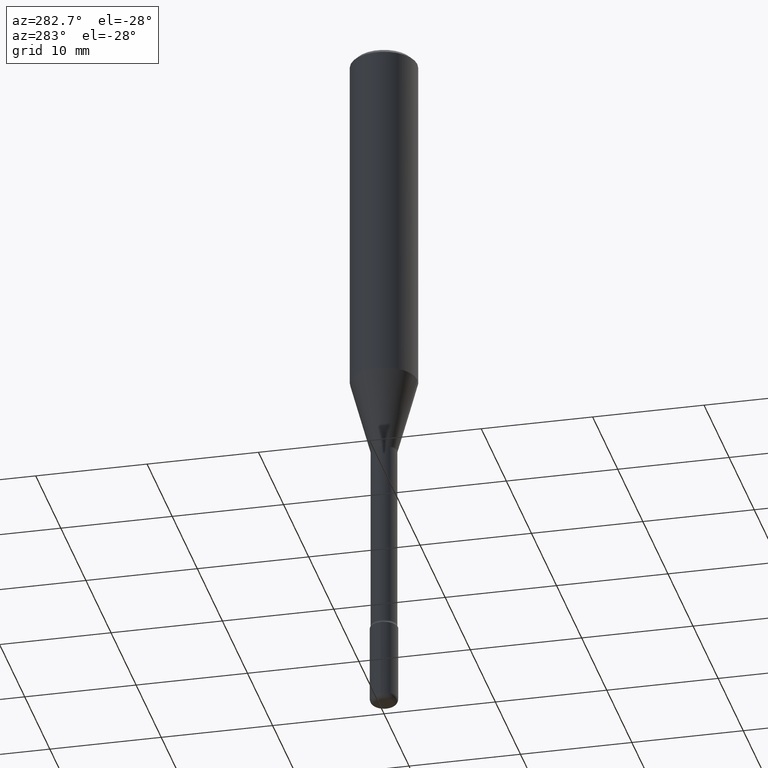
[diagram: clean part render]
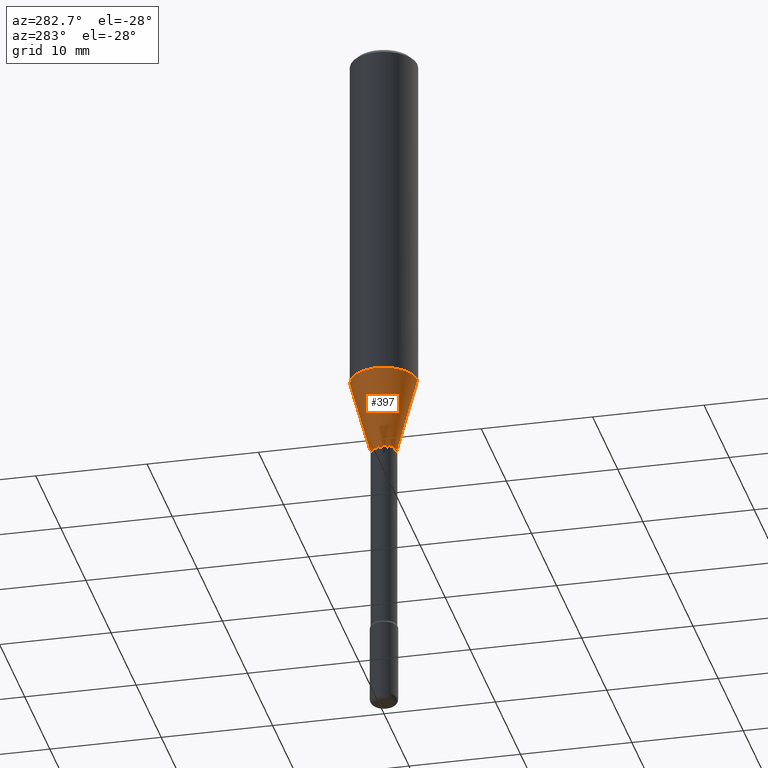
[diagram: same view with one face highlighted and labeled with its STEP entity id]
A machine part, auxiliary view. The second image highlights one B-rep face of the part: STEP entity #397.
In plain terms, the highlighted conical surface has half-angle 15 deg.
Its self-contained STEP definition (entity closure, byte-faithful):
#14 = VERTEX_POINT ( 'NONE', #357 ) ;
#22 = DIRECTION ( 'NONE',  ( -2.445721087227316555E-29, 3.491120058031798950E-15, 1.000000000000000000 ) ) ;
#24 = VERTEX_POINT ( 'NONE', #198 ) ;
#25 = CONICAL_SURFACE ( 'NONE', #88, 0.04676111260566399169, 0.2617993877991499074 ) ;
#42 = EDGE_CURVE ( 'NONE', #14, #24, #179, .T. ) ;
#51 = VERTEX_POINT ( 'NONE', #193 ) ;
#88 = AXIS2_PLACEMENT_3D ( 'NONE', #392, #348, #313 ) ;
#114 = DIRECTION ( 'NONE',  ( -6.982962677686265922E-15, -1.000000000000000000, 5.842136427980041740E-15 ) ) ;
#126 = CIRCLE ( 'NONE', #462, 0.1180999999999999966 ) ;
#129 = EDGE_CURVE ( 'NONE', #51, #184, #126, .T. ) ;
#165 = DIRECTION ( 'NONE',  ( 1.839019923739597554E-15, 0.2588190451025245697, 0.9659258262890670910 ) ) ;
#176 = EDGE_LOOP ( 'NONE', ( #441, #415, #493, #354 ) ) ;
#179 = CIRCLE ( 'NONE', #287, 0.04676111260566399169 ) ;
#184 = VERTEX_POINT ( 'NONE', #513 ) ;
#193 = CARTESIAN_POINT ( 'NONE',  ( 8.391509709327088641E-16, 0.1180999999999956807, -1.247552149476177430 ) ) ;
#198 = CARTESIAN_POINT ( 'NONE',  ( -3.265311040923994566E-16, -0.04676111260566927219, -1.513792501787273093 ) ) ;
#216 = EDGE_CURVE ( 'NONE', #14, #51, #423, .T. ) ;
#243 = VECTOR ( 'NONE', #445, 39.37007874015748143 ) ;
#248 = CARTESIAN_POINT ( 'NONE',  ( 3.702314243307729011E-29, -5.284831366687687522E-15, -1.513792501787273315 ) ) ;
#287 = AXIS2_PLACEMENT_3D ( 'NONE', #248, #293, #114 ) ;
#293 = DIRECTION ( 'NONE',  ( -2.445721087227316555E-29, 3.491120058031798950E-15, 1.000000000000000000 ) ) ;
#313 = DIRECTION ( 'NONE',  ( -6.982962677686265922E-15, -1.000000000000000000, 5.842136427980041740E-15 ) ) ;
#348 = DIRECTION ( 'NONE',  ( -2.445721087227316555E-29, 3.491120058031798950E-15, 1.000000000000000000 ) ) ;
#354 = ORIENTED_EDGE ( 'NONE', *, *, #129, .F. ) ;
#357 = CARTESIAN_POINT ( 'NONE',  ( 5.857043298564459926E-16, 0.04676111260565870426, -1.513792501787273537 ) ) ;
#366 = VECTOR ( 'NONE', #165, 39.37007874015748854 ) ;
#392 = CARTESIAN_POINT ( 'NONE',  ( 3.702314243307729011E-29, -5.284831366687687522E-15, -1.513792501787273315 ) ) ;
#397 = ADVANCED_FACE ( 'NONE', ( #439 ), #25, .T. ) ;
#406 = LINE ( 'NONE', #451, #243 ) ;
#413 = CARTESIAN_POINT ( 'NONE',  ( 3.051164599389650582E-29, -4.355354332476965725E-15, -1.247552149476176764 ) ) ;
#415 = ORIENTED_EDGE ( 'NONE', *, *, #42, .T. ) ;
#423 = LINE ( 'NONE', #455, #366 ) ;
#439 = FACE_OUTER_BOUND ( 'NONE', #176, .T. ) ;
#441 = ORIENTED_EDGE ( 'NONE', *, *, #216, .F. ) ;
#445 = DIRECTION ( 'NONE',  ( -1.807323732225327773E-15, -0.2588190451025178529, 0.9659258262890690894 ) ) ;
#451 = CARTESIAN_POINT ( 'NONE',  ( -3.265311040923994566E-16, -0.04676111260566927219, -1.513792501787273093 ) ) ;
#455 = CARTESIAN_POINT ( 'NONE',  ( 3.322576887801829239E-16, 0.04676111260565870426, -1.513792501787273537 ) ) ;
#462 = AXIS2_PLACEMENT_3D ( 'NONE', #413, #22, #545 ) ;
#472 = EDGE_CURVE ( 'NONE', #24, #184, #406, .T. ) ;
#493 = ORIENTED_EDGE ( 'NONE', *, *, #472, .T. ) ;
#513 = CARTESIAN_POINT ( 'NONE',  ( -8.246878922347172998E-16, -0.1181000000000043126, -1.247552149476176320 ) ) ;
#545 = DIRECTION ( 'NONE',  ( -6.982962677686265922E-15, -1.000000000000000000, 4.626330217890369336E-15 ) ) ;